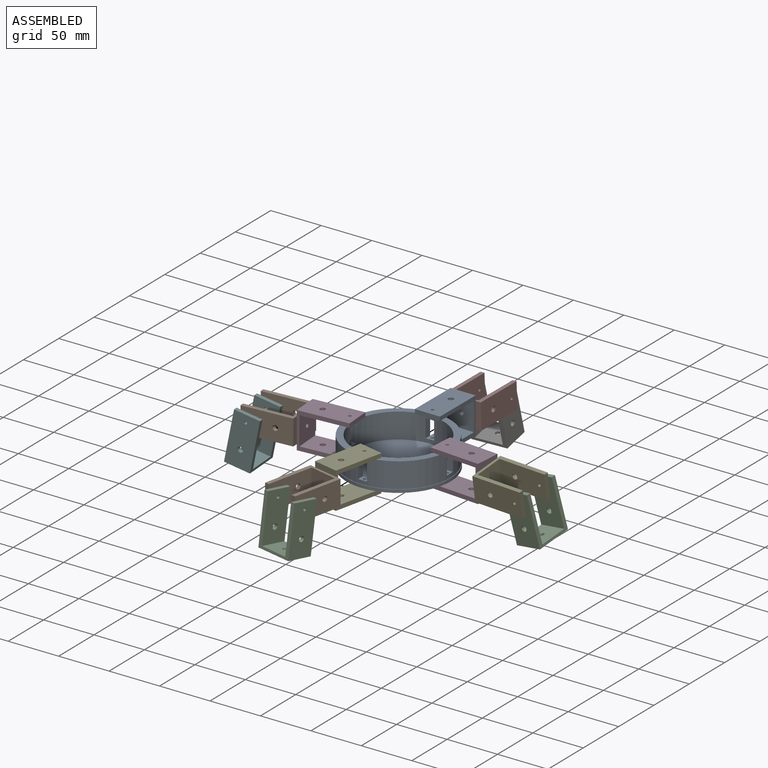
[diagram: assembled view]
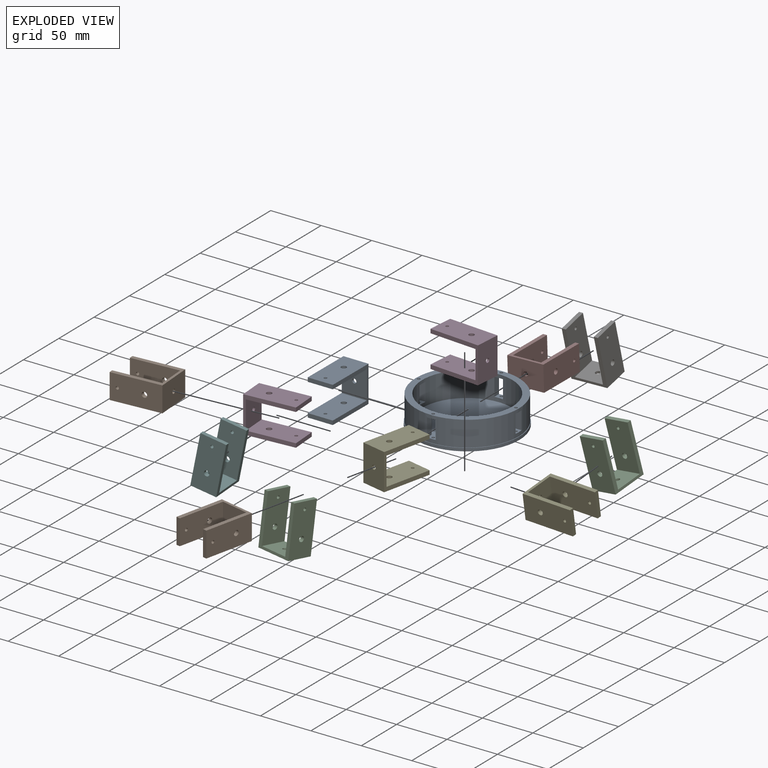
[diagram: exploded view]
GUIDED TOUR — MATED ASSEMBLY (Onshape document 5d435cd448d8f5c438c26eea, AutoMate assembly 5d435cd448d8f5c438c26eea_6f3d373aece2c92c3704abd1_5a1d6ec0963f0800d22ee970_default)

This assembly has 13 components, labeled P0..P12 below (a component is one placed occurrence of a part; the same part can appear more than once), held together by 12 mates. A mate is a constraint between two components; its type names the relative motion it leaves free:
  FASTENED — locks the two components together rigidly (no relative motion),
  REVOLUTE — leaves rotation about the listed axis free (a hinge).
Axis/direction vectors are unit vectors and 'through' points are millimeter coordinates, both in the assembly's world frame.

MATES
  1. REVOLUTE "Revolute 8": P7 <-> P0, axis (-0.009, -1.000, 0.000) through (15.47, 79.15, 20.17) mm
  2. REVOLUTE "Revolute 3": P9 <-> P12, axis (0.219, 0.976, 0.000) through (5.74, -101.82, 20.17) mm
  3. FASTENED "Fastened 3": P1 <-> P3, direction (0.998, 0.070, 0.000) through (-75.81, -14.86, 20.17) mm
  4. REVOLUTE "Revolute 1": P0 <-> P8, axis (0.000, 0.000, -1.000) through (15.09, 36.39, 34.17) mm
  5. REVOLUTE "Revolute 2": P12 <-> P8, axis (0.000, 0.000, -1.000) through (15.09, -60.10, 34.17) mm
  6. REVOLUTE "Revolute 10": P2 <-> P9, axis (-0.976, 0.219, 0.000) through (13.96, -147.49, 20.17) mm
  7. REVOLUTE "Revolute 7": P11 <-> P8, axis (0.000, 0.000, -1.000) through (63.34, -11.85, 34.17) mm
  8. REVOLUTE "Revolute 4": P5 <-> P1, axis (-0.070, 0.998, 0.000) through (-117.20, -35.82, 20.17) mm
  9. REVOLUTE "Revolute 5": P4 <-> P11, axis (-0.997, 0.081, 0.000) through (105.96, -15.31, 20.17) mm
  10. REVOLUTE "Revolute 9": P6 <-> P7, axis (0.999, -0.009, 0.033) through (-2.14, 122.07, 19.57) mm
  11. REVOLUTE "Revolute 11": P10 <-> P4, axis (-0.080, -0.986, -0.149) through (150.02, -1.03, 22.86) mm
  12. REVOLUTE "Revolute 6": P3 <-> P8, axis (0.000, 0.000, -1.000) through (-33.15, -11.85, 34.17) mm

ASSEMBLY ORDER
  1. P2 — the base component [order verified]
  2. P9 [order verified]
  3. P12 [order verified]
  4. P8 [order verified]
  5. P4 [order verified]
  6. P10 [order verified]
  7. P0 [order verified]
  8. P11 [order verified]
  9. P3 [order verified]
  10. P5 [order verified]
  11. P1 [order verified]
  12. P7 [order verified]
  13. P6 [order verified]
Order-tag legend:
  [order verified] — this step's position reverses a verified removal order: the component was checked to insert without passing through the ones already placed.

Of the 13 components, 13 carry the full construction recipe — the FeatureScript program that regenerates the part's solid from scratch; the rest are supplied as boundary geometry only.
Because this assembly has more than 12 components, the tour below covers the 12 most significant ones individually (every recipe-attached component first, then the largest by part volume), in assembly order; the remaining 1 are summarized together in a grouped section at the end.
Each toured component is shown spotlighted twice — in the assembled view, then in the exploded view, where a leader line traces a displaced component back to its assembled socket (saturated green if recipe-attached, orange if geometry-only; every other component desaturated gray) — followed by its recipe or geometry summary and the mates that hold it.
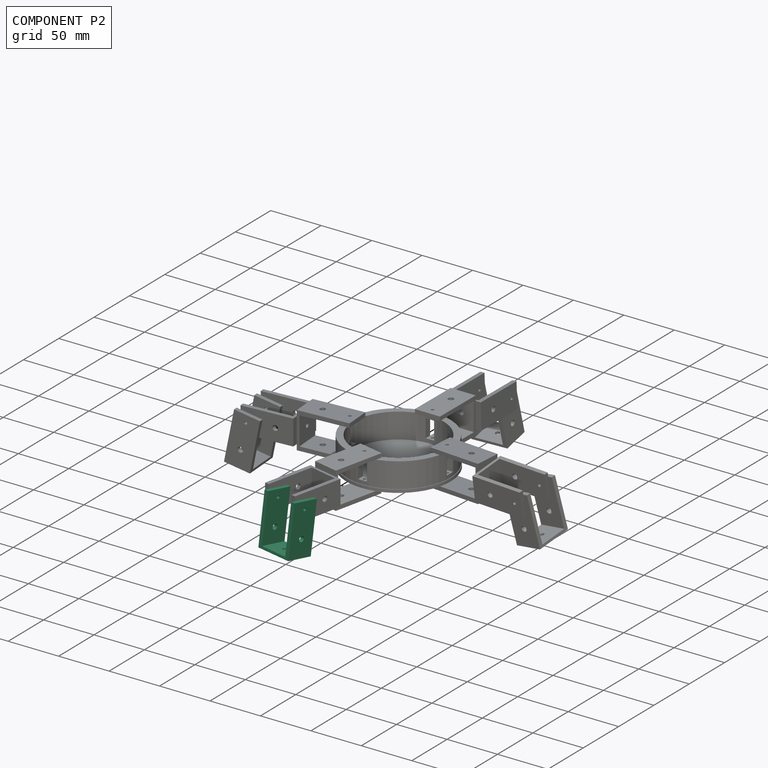
[diagram: component P2 — assembled]
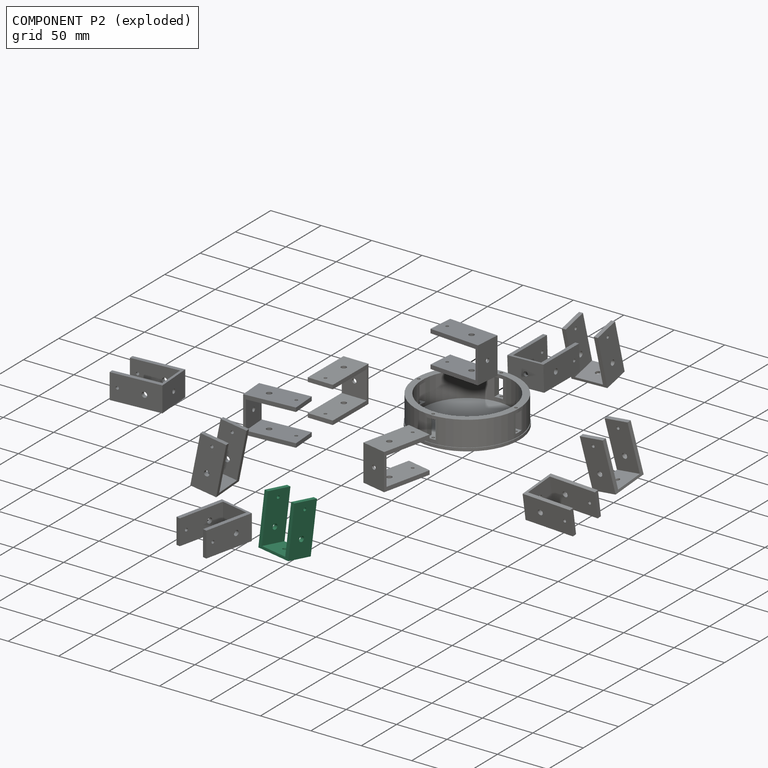
[diagram: component P2 — exploded]
COMPONENT P2 — same part as P0 (CADFS 00973655); its construction recipe is shown at P0.
Held by: REVOLUTE mate "Revolute 10" to P9.
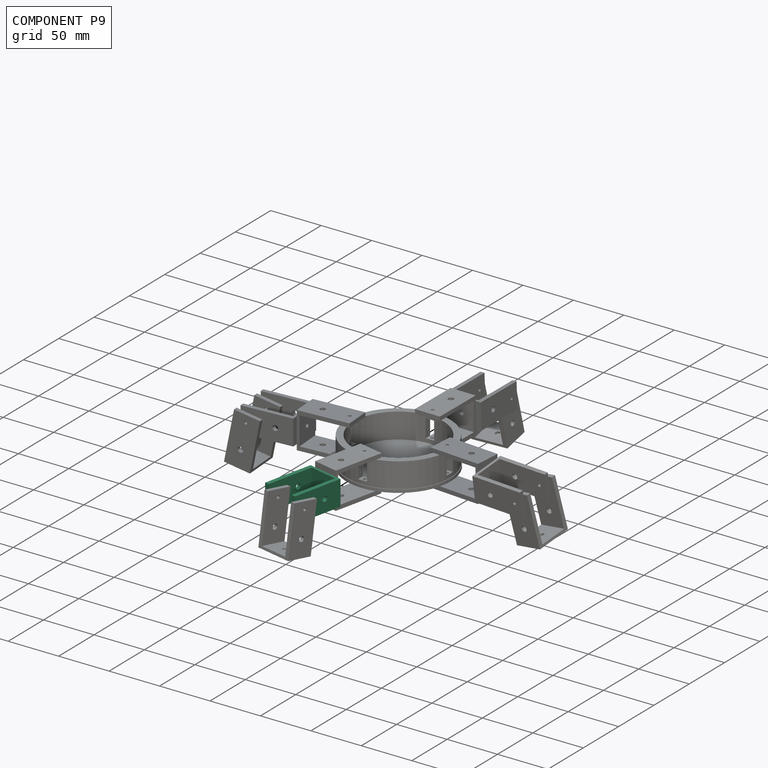
[diagram: component P9 — assembled]
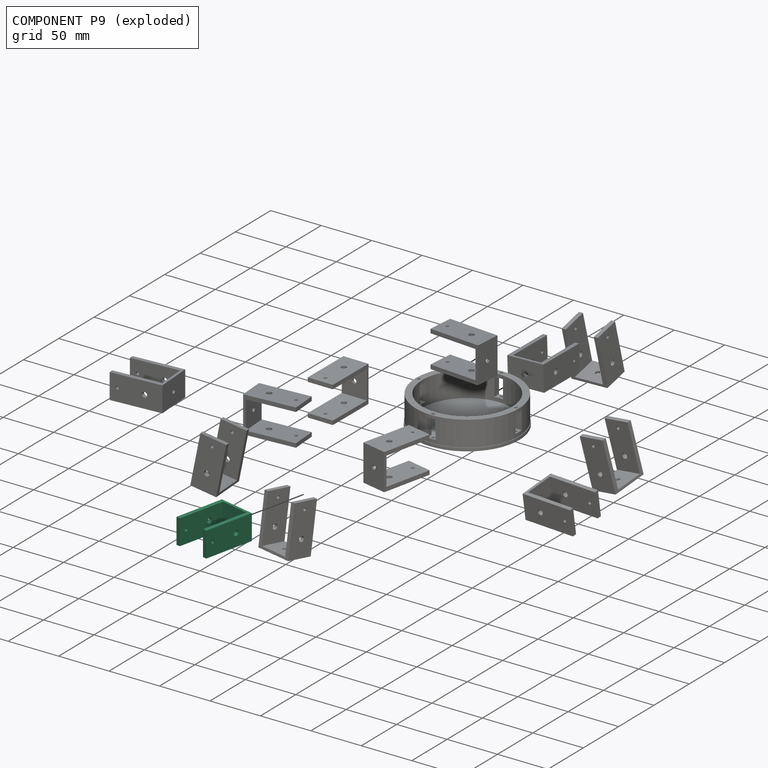
[diagram: component P9 — exploded]
COMPONENT P9 — same part as P0 (CADFS 00973655); its construction recipe is shown at P0.
Held by: REVOLUTE mate "Revolute 3" to P12; REVOLUTE mate "Revolute 10" to P2.
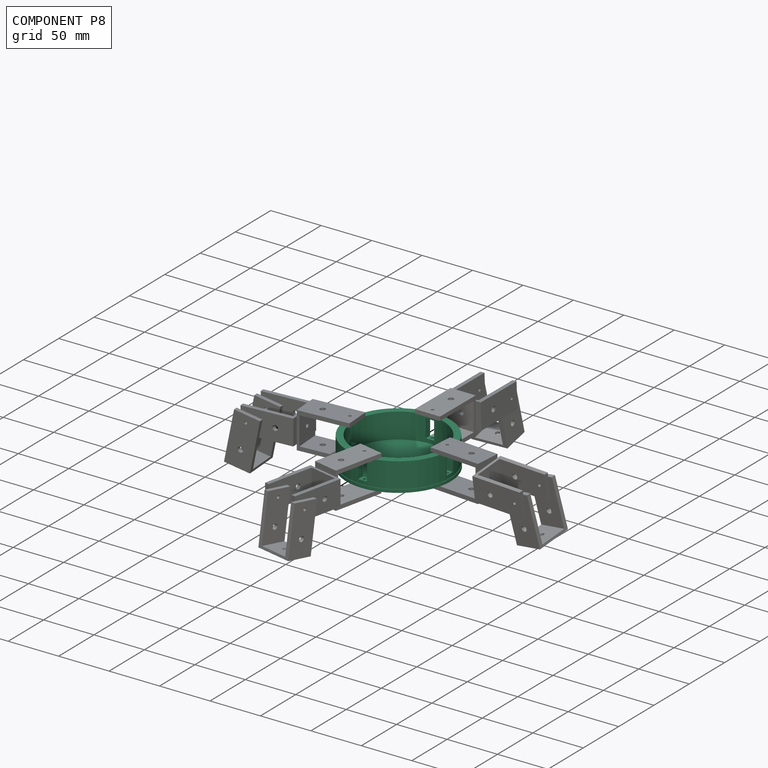
[diagram: component P8 — assembled]
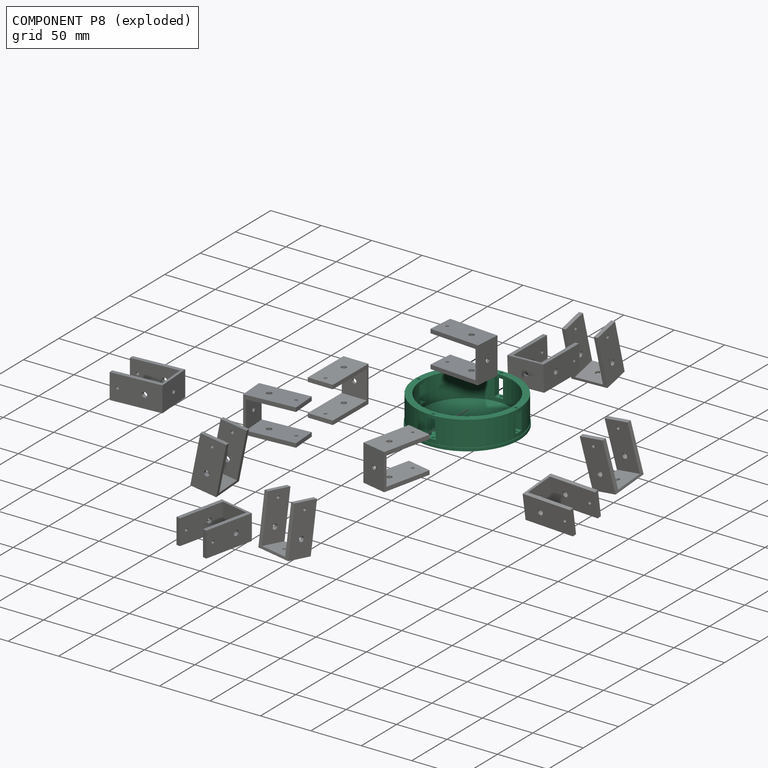
[diagram: component P8 — exploded]
COMPONENT P8 — recipe-attached (CADFS 00973654, mesh-verified: the recipe's output STEP matches this component's geometry to below the mesh-comparison resolution (tessellation chordal tolerance ~0.223 mm)).
Held by: REVOLUTE mate "Revolute 1" to P0; REVOLUTE mate "Revolute 2" to P12; REVOLUTE mate "Revolute 7" to P11; REVOLUTE mate "Revolute 6" to P3.
Construction recipe (FeatureScript — the CAD program that rebuilds this solid; sketch coordinates are in the units given by the * unit suffixes, e.g. mm):

FeatureScript 1540;
import(path : "onshape/std/geometry.fs", version : "1540.0");
import(path : "onshape/std/common.fs", version : "1540.0");
const mm = millimeter;
const VERTEX = EntityType.VERTEX;
const EDGE = EntityType.EDGE;
const FACE = EntityType.FACE;
const BODY = EntityType.BODY;
function v(x, y){return vector(x, y);}
function OD(order){return orderDisambiguation(order);}
function OSD(set){return originalSetDisambiguation(set);}
function TD(topology){return topologyDisambiguation(topology);}
function TDD(query){return trueDependencyDisambiguation(query);}
function sQuery(a, b, c) {return sketchEntityQuery(a, b, c);}

annotation { "Feature Type Name" : "Feature", "Feature Type Description" : "" }
export const myFeature = defineFeature(function(context is Context, id is Id, definition is map)
    precondition{}
    {
        {
            var Q0;
            Q0=qCreatedBy(makeId("Top.planeOp"),FACE);
            var sketch = newSketch(context, id + "F0", { "sketchPlane" : qUnion([Q0])});
            skCircle(sketch, "E0", {"center": v(0, 0) * mm, "radius": 51.06 * mm});
            skCircle(sketch, "E1", {"center": v(0, 0) * mm, "radius": 44.65 * mm});
            skSolve(sketch);
        }
        {
            var Q0;
            Q0=makeQuery(id+"F0.imprint","IMPRINT",FACE,{"disambiguationData":[TD([[makeQuery(id+"F0.imprint","IMPRINT",EDGE,{"derivedFrom":sQuery(id+"F0.wireOp",EDGE,"E0")}),1.0]])]});
            extrude(context, id + "F1", {"entities" : qUnion([Q0]), "depth" : 25 * mm, "offsetDistance" : 25 * mm});
        }
        {
            var Q0;
            Q0=makeQuery(id+"F1.opExtrude","CAP_FACE",FACE,{"disambiguationData":[OSD([sQuery(id+"F0.wireOp",EDGE,"E0"),sQuery(id+"F0.wireOp",EDGE,"E1")])],"isStart":true});
            var sketch = newSketch(context, id + "F2", { "sketchPlane" : qUnion([Q0])});
            skCircle(sketch, "E2", {"center": v(0, 0) * mm, "radius": 51.66 * mm});
            skSolve(sketch);
        }
        {
            var Q0;
            Q0 = qSketchRegion(id + "F2", true);
            extrude(context, id + "F3", {"entities" : qUnion([Q0]), "operationType" : NewBodyOperationType.ADD, "depth" : 3 * mm, "offsetDistance" : 25 * mm});
        }
        {
            var Q0;
            Q0=qCreatedBy(makeId("Front.planeOp"),FACE);
            var sketch = newSketch(context, id + "F4", { "sketchPlane" : qUnion([Q0])});
            skLineSegment(sketch, "E3.bottom", {"start": v(-4.24, 21.68) * mm, "end": v(4.24, 21.68) * mm});
            skLineSegment(sketch, "E3.top", {"start": v(-4.24, 3.76) * mm, "end": v(4.24, 3.76) * mm});
            skLineSegment(sketch, "E3.left", {"start": v(-4.24, 21.68) * mm, "end": v(-4.24, 3.76) * mm});
            skLineSegment(sketch, "E3.right", {"start": v(4.24, 21.68) * mm, "end": v(4.24, 3.76) * mm});
            skPoint(sketch, "E3.middle", {"position": v(0, 12.72) * mm});
            skSolve(sketch);
        }
        {
            var Q0;
            Q0=makeQuery(id+"F4.imprint","IMPRINT",FACE,{"disambiguationData":[TD([[makeQuery(id+"F4.imprint","IMPRINT",EDGE,{"derivedFrom":sQuery(id+"F4.wireOp",EDGE,"E3.bottom")}),-1.0]])]});
            extrude(context, id + "F5", {"entities" : qUnion([Q0]), "operationType" : NewBodyOperationType.REMOVE, "oppositeDirection" : true, "depth" : 174.4 * mm, "offsetDistance" : 25 * mm, "symmetric" : true});
        }
        {
            var Q0;
            Q0=qCreatedBy(makeId("Right.planeOp"),FACE);
            var sketch = newSketch(context, id + "F6", { "sketchPlane" : qUnion([Q0])});
            skLineSegment(sketch, "E4.bottom", {"start": v(-4.24, 21.77) * mm, "end": v(4.24, 21.77) * mm});
            skLineSegment(sketch, "E4.top", {"start": v(-4.24, 3.85) * mm, "end": v(4.24, 3.85) * mm});
            skLineSegment(sketch, "E4.left", {"start": v(-4.24, 21.77) * mm, "end": v(-4.24, 3.85) * mm});
            skLineSegment(sketch, "E4.right", {"start": v(4.24, 21.77) * mm, "end": v(4.24, 3.85) * mm});
            skPoint(sketch, "E4.middle", {"position": v(0, 12.8) * mm});
            skSolve(sketch);
        }
        {
            var Q0;
            Q0=makeQuery(id+"F6.imprint","IMPRINT",FACE,{"disambiguationData":[TD([[makeQuery(id+"F6.imprint","IMPRINT",EDGE,{"derivedFrom":sQuery(id+"F6.wireOp",EDGE,"E4.bottom")}),-1.0]])]});
            extrude(context, id + "F7", {"entities" : qUnion([Q0]), "operationType" : NewBodyOperationType.REMOVE, "oppositeDirection" : true, "depth" : 123.8 * mm, "offsetDistance" : 25 * mm, "symmetric" : true});
        }
        {
            var Q0;
            Q0=makeQuery(id+"F1.opExtrude","CAP_FACE",FACE,{"disambiguationData":[OSD([sQuery(id+"F0.wireOp",EDGE,"E0"),sQuery(id+"F0.wireOp",EDGE,"E1")])],"isStart":false});
            var sketch = newSketch(context, id + "F8", { "sketchPlane" : qUnion([Q0])});
            skCircle(sketch, "E5", {"center": v(0, 48.25) * mm, "radius": 1.5 * mm});
            skCircle(sketch, "E6.1.0", {"center": v(-48.25, 0) * mm, "radius": 1.5 * mm});
            skCircle(sketch, "E6.2.0", {"center": v(0, -48.25) * mm, "radius": 1.5 * mm});
            skPoint(sketch, "E6.center", {"position": v(0, 0) * mm});
            skCircle(sketch, "E7.1.3.0", {"center": v(48.25, 0) * mm, "radius": 1.5 * mm});
            skSolve(sketch);
        }
        {
            var Q0;
            Q0=makeQuery(id+"F8.imprint","IMPRINT",FACE,{"disambiguationData":[TD([[makeQuery(id+"F8.imprint","IMPRINT",EDGE,{"derivedFrom":sQuery(id+"F8.wireOp",EDGE,"E5")}),1.0]])]});
            var Q1;
            Q1=makeQuery(id+"F8.imprint","IMPRINT",FACE,{"disambiguationData":[TD([[makeQuery(id+"F8.imprint","IMPRINT",EDGE,{"derivedFrom":sQuery(id+"F8.wireOp",EDGE,"E6.2.0")}),1.0]])]});
            var Q2;
            Q2=makeQuery(id+"F8.imprint","IMPRINT",FACE,{"disambiguationData":[TD([[makeQuery(id+"F8.imprint","IMPRINT",EDGE,{"derivedFrom":sQuery(id+"F8.wireOp",EDGE,"E6.1.0")}),1.0]])]});
            var Q3;
            Q3=makeQuery(id+"F8.imprint","IMPRINT",FACE,{"disambiguationData":[TD([[makeQuery(id+"F8.imprint","IMPRINT",EDGE,{"derivedFrom":sQuery(id+"F8.wireOp",EDGE,"E7.1.3.0")}),1.0]])]});
            extrude(context, id + "F9", {"entities" : qUnion([Q0, Q1, Q2, Q3]), "operationType" : NewBodyOperationType.REMOVE, "endBound" : BoundingType.THROUGH_ALL, "oppositeDirection" : true, "depth" : 25 * mm, "offsetDistance" : 25 * mm});
        }
    });
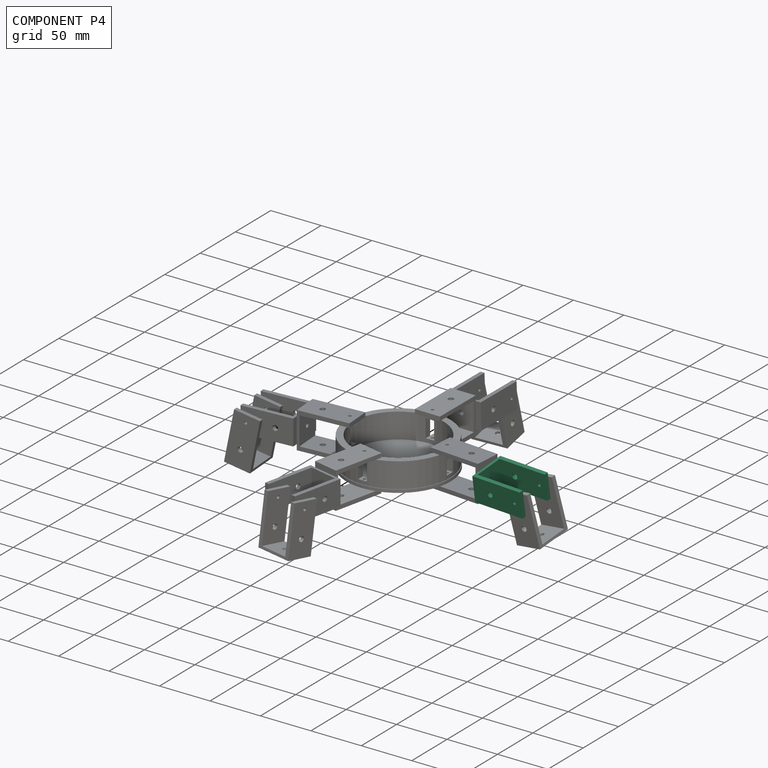
[diagram: component P4 — assembled]
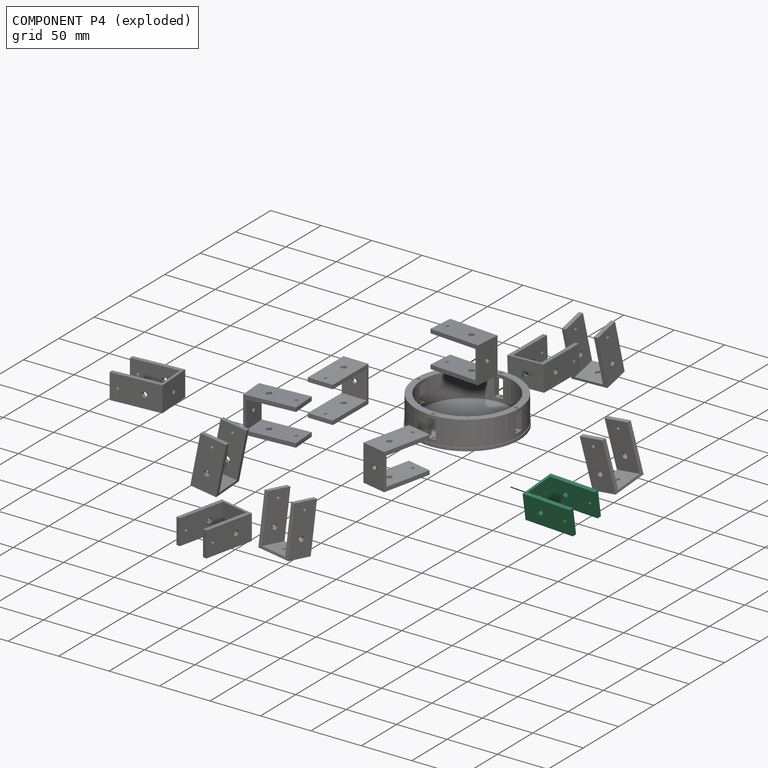
[diagram: component P4 — exploded]
COMPONENT P4 — same part as P0 (CADFS 00973655); its construction recipe is shown at P0.
Held by: REVOLUTE mate "Revolute 5" to P11; REVOLUTE mate "Revolute 11" to P10.
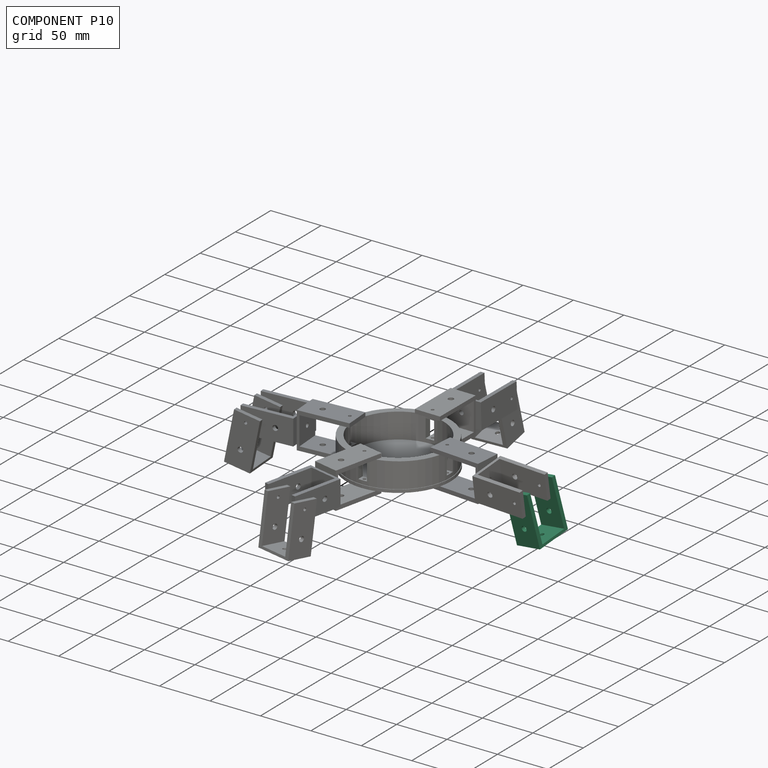
[diagram: component P10 — assembled]
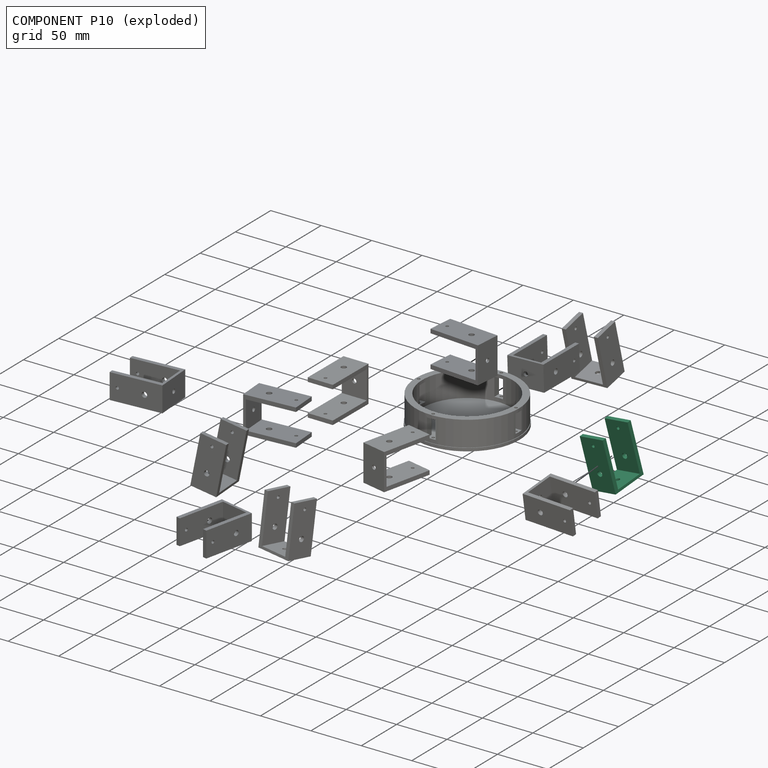
[diagram: component P10 — exploded]
COMPONENT P10 — same part as P0 (CADFS 00973655); its construction recipe is shown at P0.
Held by: REVOLUTE mate "Revolute 11" to P4.
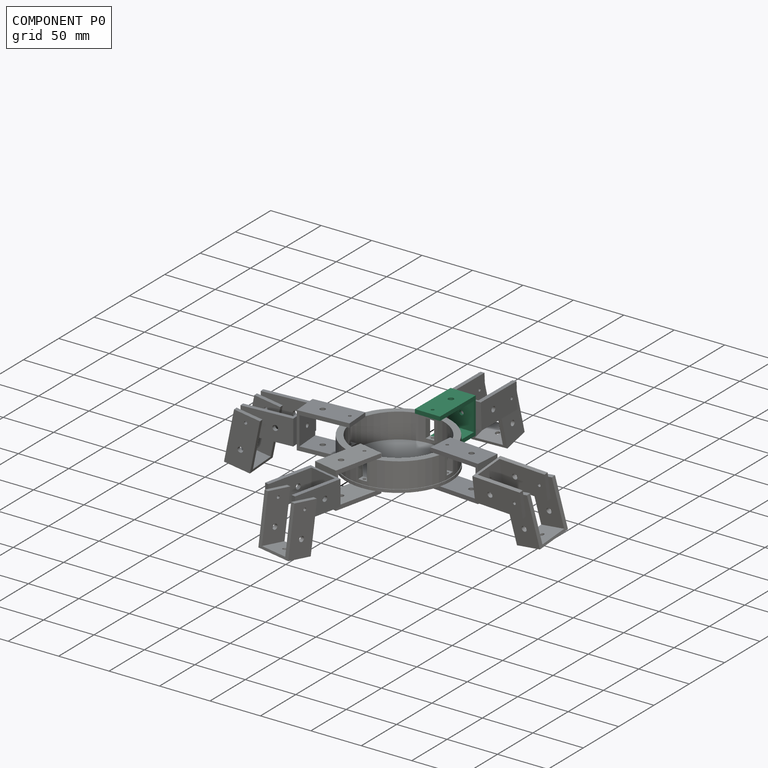
[diagram: component P0 — assembled]
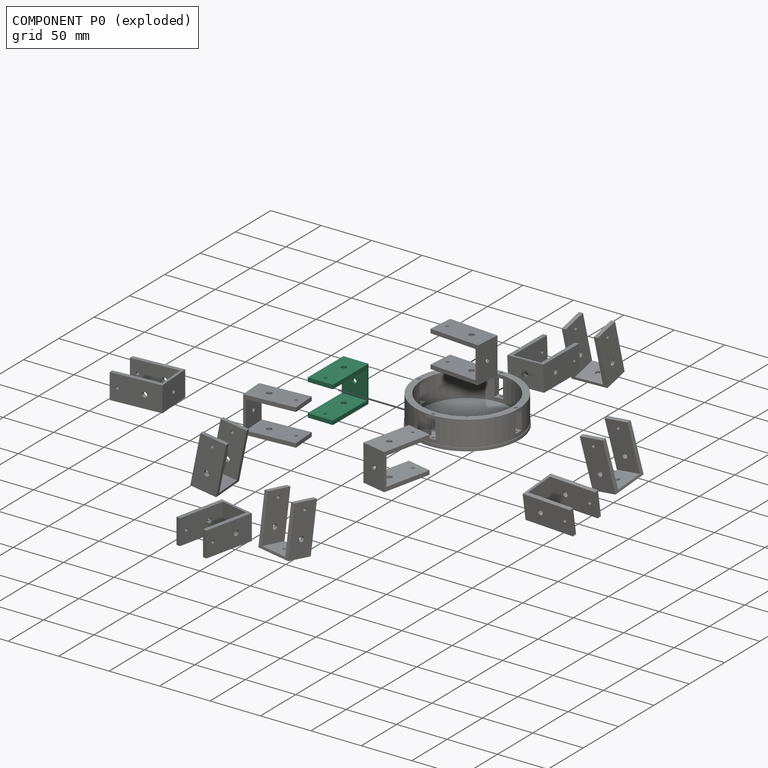
[diagram: component P0 — exploded]
COMPONENT P0 — recipe-attached (CADFS 00973655, mesh-verified: the recipe's output STEP matches this component's geometry to below the mesh-comparison resolution (tessellation chordal tolerance ~0.0997 mm)).
Held by: REVOLUTE mate "Revolute 8" to P7; REVOLUTE mate "Revolute 1" to P8.
Construction recipe (FeatureScript — the CAD program that rebuilds this solid; sketch coordinates are in the units given by the * unit suffixes, e.g. mm):

FeatureScript 1540;
import(path : "onshape/std/geometry.fs", version : "1540.0");
import(path : "onshape/std/common.fs", version : "1540.0");
const mm = millimeter;
const VERTEX = EntityType.VERTEX;
const EDGE = EntityType.EDGE;
const FACE = EntityType.FACE;
const BODY = EntityType.BODY;
function v(x, y){return vector(x, y);}
function OD(order){return orderDisambiguation(order);}
function OSD(set){return originalSetDisambiguation(set);}
function TD(topology){return topologyDisambiguation(topology);}
function TDD(query){return trueDependencyDisambiguation(query);}
function sQuery(a, b, c) {return sketchEntityQuery(a, b, c);}

annotation { "Feature Type Name" : "Feature", "Feature Type Description" : "" }
export const myFeature = defineFeature(function(context is Context, id is Id, definition is map)
    precondition{}
    {
        {
            var Q0;
            Q0=qCreatedBy(makeId("Front.planeOp"),FACE);
            var sketch = newSketch(context, id + "F0", { "sketchPlane" : qUnion([Q0])});
            skLineSegment(sketch, "E0.bottom", {"start": v(-25, 18) * mm, "end": v(25, 18) * mm});
            skLineSegment(sketch, "E0.top", {"start": v(-25, -18) * mm, "end": v(25, -18) * mm});
            skLineSegment(sketch, "E0.left", {"start": v(-25, 18) * mm, "end": v(-25, -18) * mm});
            skLineSegment(sketch, "E0.right", {"start": v(25, 18) * mm, "end": v(25, 14) * mm});
            skPoint(sketch, "E0.middle", {"position": v(0, 0) * mm});
            skLineSegment(sketch, "E1.bottom", {"start": v(-22.5, 14) * mm, "end": v(22.5, 14) * mm});
            skLineSegment(sketch, "E1.top", {"start": v(-22.5, -14) * mm, "end": v(22.5, -14) * mm});
            skLineSegment(sketch, "E1.left", {"start": v(-22.5, 14) * mm, "end": v(-22.5, -14) * mm});
            skLineSegment(sketch, "E2", {"start": v(22.5, 14) * mm, "end": v(25, 14) * mm});
            skLineSegment(sketch, "E3", {"start": v(25, -14) * mm, "end": v(22.5, -14) * mm});
            skLineSegment(sketch, "E4.trimOffspring", {"start": v(25, -14) * mm, "end": v(25, -18) * mm});
            skPoint(sketch, "E5.orphan", {"position": v(56.95, -14) * mm});
            skSolve(sketch);
        }
        {
            var Q0;
            Q0=makeQuery(id+"F0.imprint","IMPRINT",FACE,{"disambiguationData":[TD([[makeQuery(id+"F0.imprint","IMPRINT",EDGE,{"derivedFrom":sQuery(id+"F0.wireOp",EDGE,"E0.bottom")}),-1.0]])]});
            extrude(context, id + "F1", {"entities" : qUnion([Q0]), "depth" : 25 * mm, "offsetDistance" : 25 * mm});
        }
        {
            var Q0;
            Q0=makeQuery(id+"F1.opExtrude","SWEPT_FACE",FACE,{"disambiguationData":[OSD([sQuery(id+"F0.wireOp",EDGE,"E0.bottom")])]});
            var sketch = newSketch(context, id + "F2", { "sketchPlane" : qUnion([Q0])});
            skCircle(sketch, "E6", {"center": v(17.76, -12.5) * mm, "radius": 1.5 * mm});
            skPoint(sketch, "E6.centerSnap0", {"position": v(25, -12.5) * mm});
            skSolve(sketch);
        }
        {
            var Q0;
            Q0=makeQuery(id+"F2.imprint","IMPRINT",FACE,{"disambiguationData":[TD([[makeQuery(id+"F2.imprint","IMPRINT",EDGE,{"derivedFrom":sQuery(id+"F2.wireOp",EDGE,"E6")}),1.0]])]});
            extrude(context, id + "F3", {"entities" : qUnion([Q0]), "operationType" : NewBodyOperationType.REMOVE, "endBound" : BoundingType.THROUGH_ALL, "oppositeDirection" : true, "depth" : 25 * mm, "offsetDistance" : 25 * mm});
        }
        {
            var Q0;
            Q0=makeQuery(id+"F1.opExtrude","SWEPT_FACE",FACE,{"disambiguationData":[OSD([sQuery(id+"F0.wireOp",EDGE,"E0.left")])]});
            var sketch = newSketch(context, id + "F4", { "sketchPlane" : qUnion([Q0])});
            skCircle(sketch, "E7", {"center": v(12.5, 0) * mm, "radius": 2.15 * mm});
            skPoint(sketch, "E7.centerSnap0", {"position": v(12.5, 18) * mm});
            skPoint(sketch, "E7.centerSnap1", {"position": v(25, 0) * mm});
            skSolve(sketch);
        }
        {
            var Q0;
            Q0=makeQuery(id+"F4.imprint","IMPRINT",FACE,{"disambiguationData":[TD([[makeQuery(id+"F4.imprint","IMPRINT",EDGE,{"derivedFrom":sQuery(id+"F4.wireOp",EDGE,"E7")}),1.0]])]});
            extrude(context, id + "F5", {"entities" : qUnion([Q0]), "operationType" : NewBodyOperationType.REMOVE, "endBound" : BoundingType.THROUGH_ALL, "oppositeDirection" : true, "depth" : 25 * mm, "offsetDistance" : 25 * mm});
        }
        {
            var Q0;
            Q0=makeQuery(id+"F1.opExtrude","SWEPT_FACE",FACE,{"disambiguationData":[OSD([sQuery(id+"F0.wireOp",EDGE,"E0.bottom")])]});
            var sketch = newSketch(context, id + "F6", { "sketchPlane" : qUnion([Q0])});
            skCircle(sketch, "E8", {"center": v(-7.93, -12.5) * mm, "radius": 2.62 * mm});
            skPoint(sketch, "E8.centerSnap0", {"position": v(-25, -12.5) * mm});
            skSolve(sketch);
        }
        {
            var Q0;
            Q0=makeQuery(id+"F6.imprint","IMPRINT",FACE,{"disambiguationData":[TD([[makeQuery(id+"F6.imprint","IMPRINT",EDGE,{"derivedFrom":sQuery(id+"F6.wireOp",EDGE,"E8")}),1.0]])]});
            extrude(context, id + "F7", {"entities" : qUnion([Q0]), "operationType" : NewBodyOperationType.REMOVE, "endBound" : BoundingType.THROUGH_ALL, "oppositeDirection" : true, "depth" : 25 * mm, "offsetDistance" : 25 * mm});
        }
    });
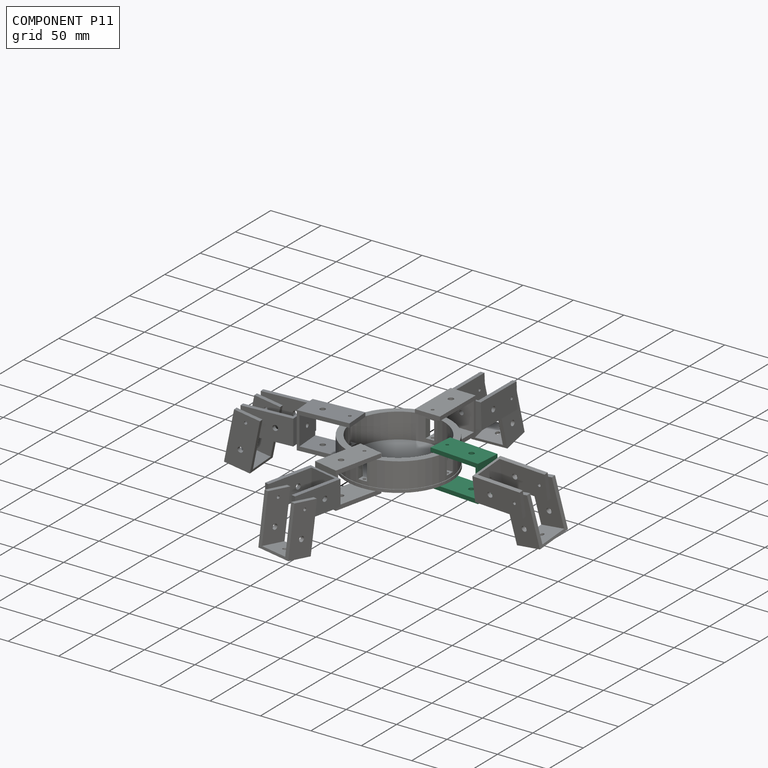
[diagram: component P11 — assembled]
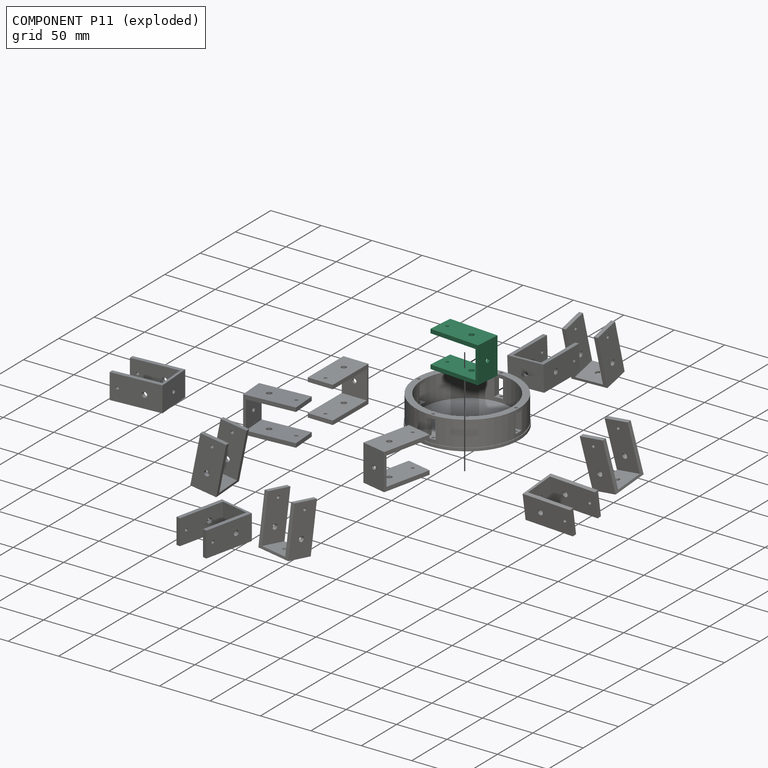
[diagram: component P11 — exploded]
COMPONENT P11 — same part as P0 (CADFS 00973655); its construction recipe is shown at P0.
Held by: REVOLUTE mate "Revolute 7" to P8; REVOLUTE mate "Revolute 5" to P4.
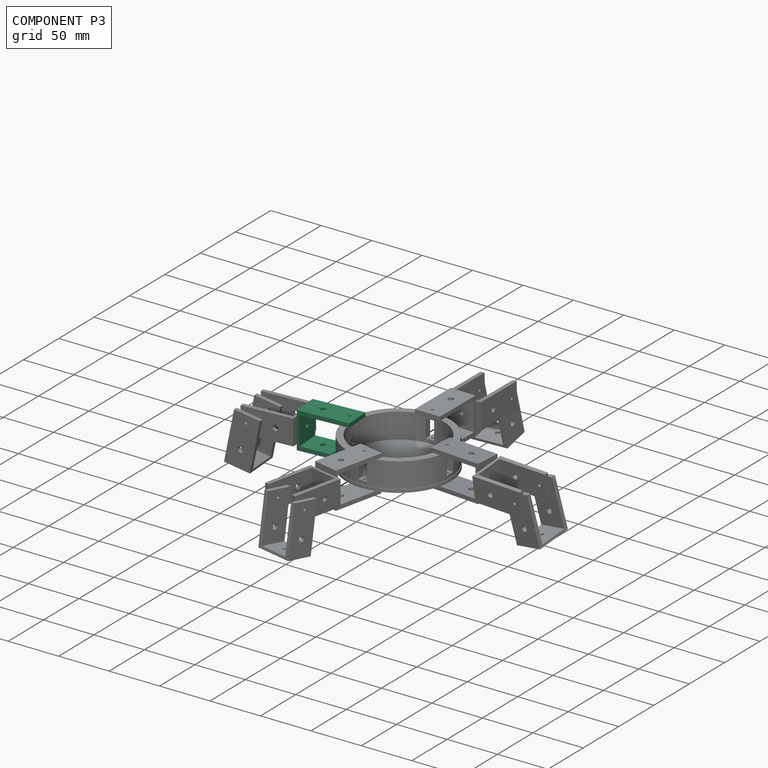
[diagram: component P3 — assembled]
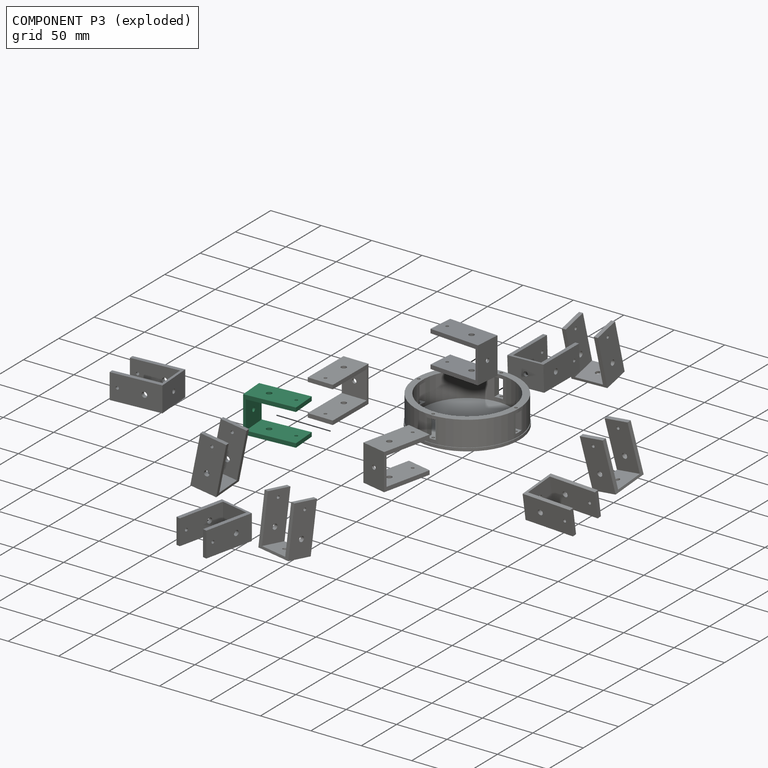
[diagram: component P3 — exploded]
COMPONENT P3 — same part as P0 (CADFS 00973655); its construction recipe is shown at P0.
Held by: FASTENED mate "Fastened 3" to P1; REVOLUTE mate "Revolute 6" to P8.
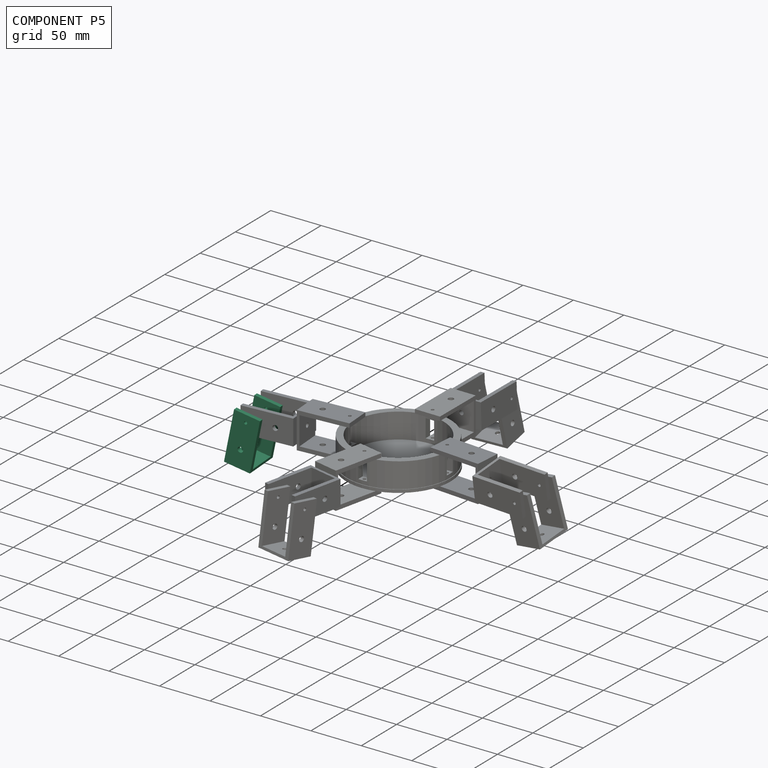
[diagram: component P5 — assembled]
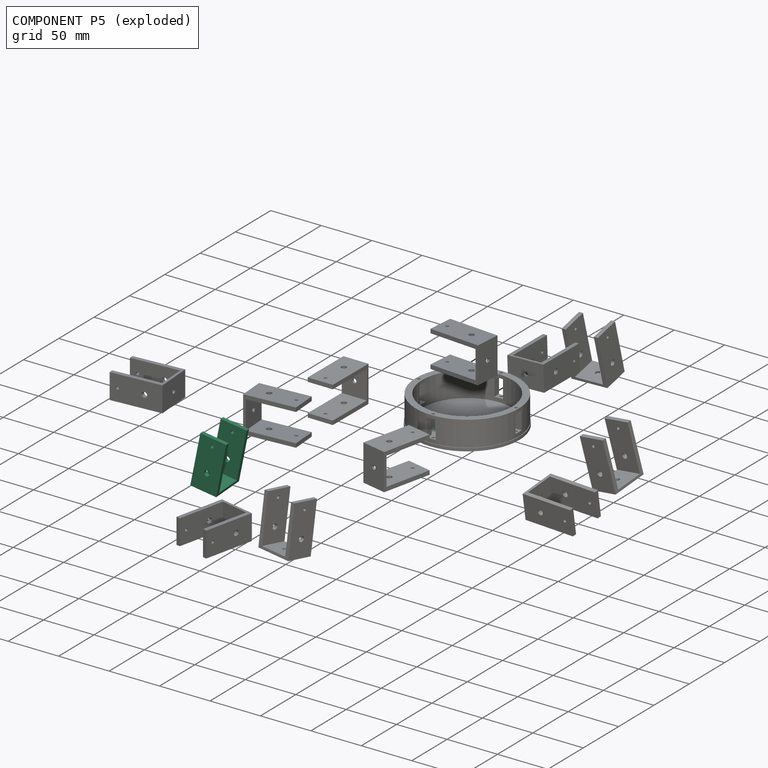
[diagram: component P5 — exploded]
COMPONENT P5 — same part as P0 (CADFS 00973655); its construction recipe is shown at P0.
Held by: REVOLUTE mate "Revolute 4" to P1.
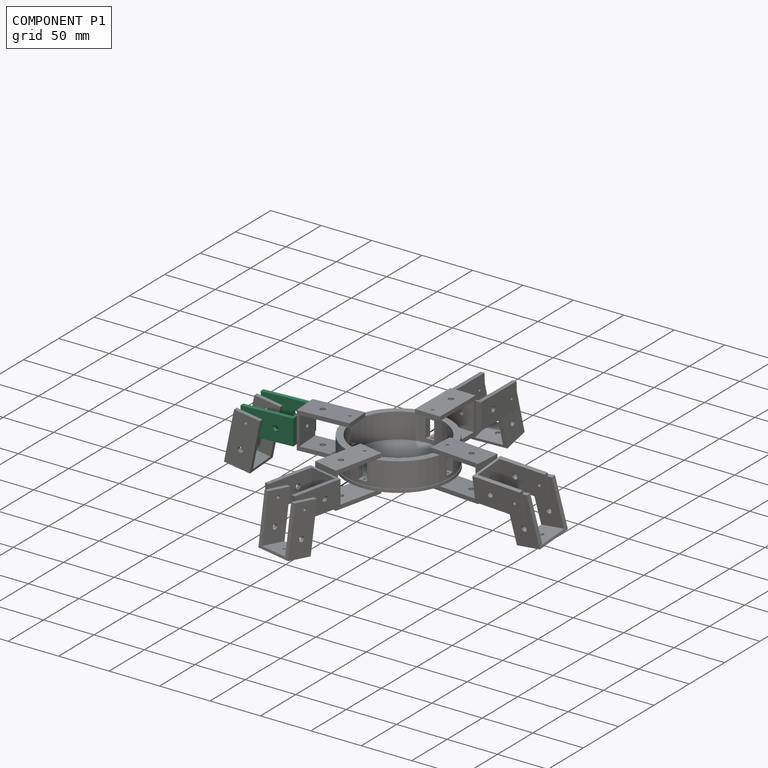
[diagram: component P1 — assembled]
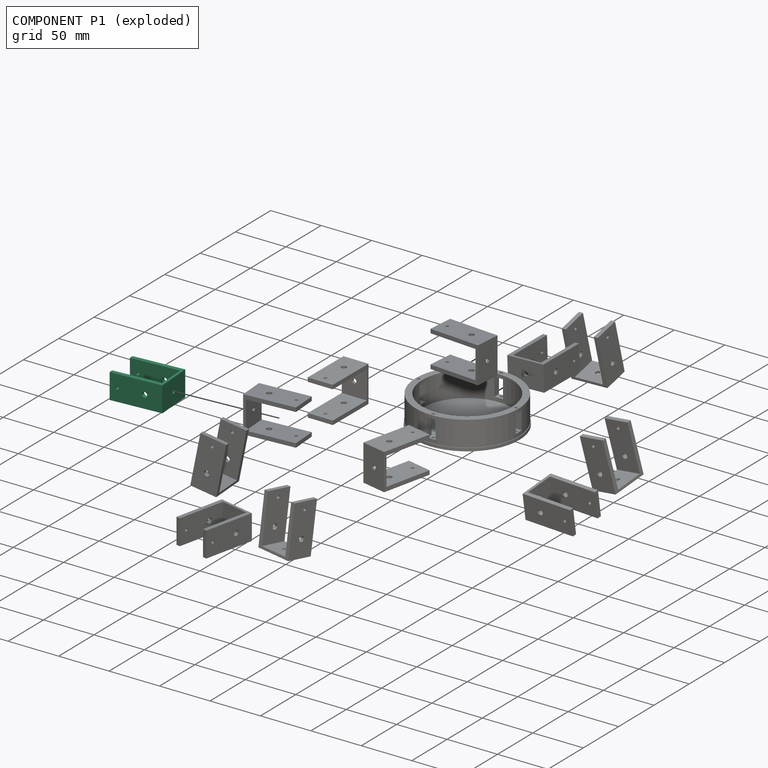
[diagram: component P1 — exploded]
COMPONENT P1 — same part as P0 (CADFS 00973655); its construction recipe is shown at P0.
Held by: FASTENED mate "Fastened 3" to P3; REVOLUTE mate "Revolute 4" to P5.
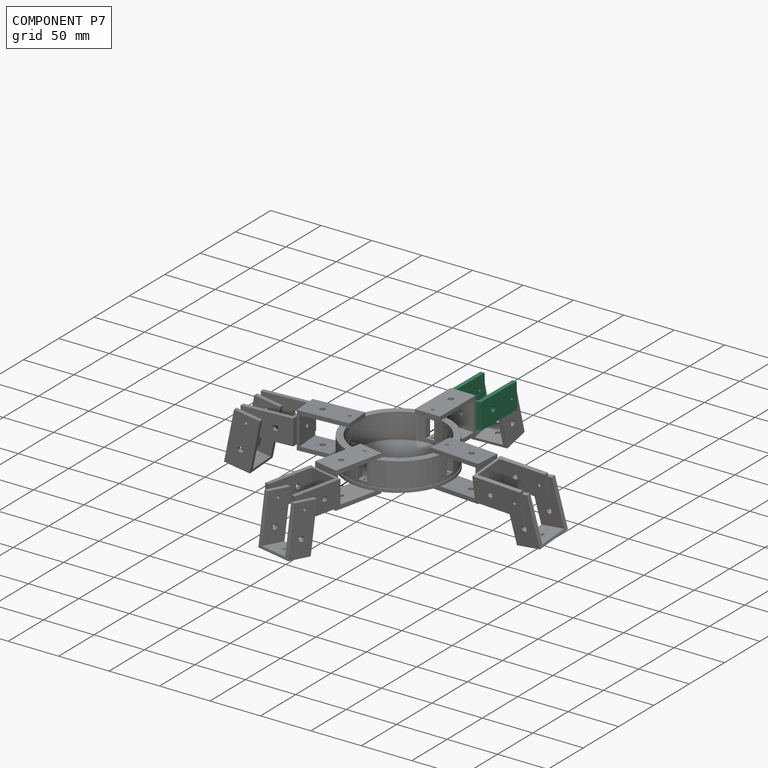
[diagram: component P7 — assembled]
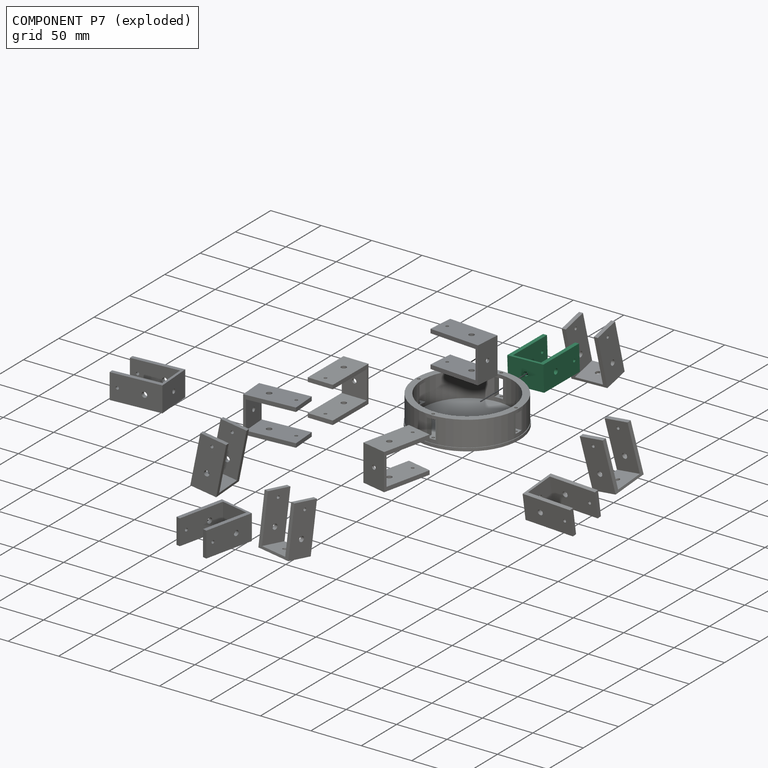
[diagram: component P7 — exploded]
COMPONENT P7 — same part as P0 (CADFS 00973655); its construction recipe is shown at P0.
Held by: REVOLUTE mate "Revolute 8" to P0; REVOLUTE mate "Revolute 9" to P6.
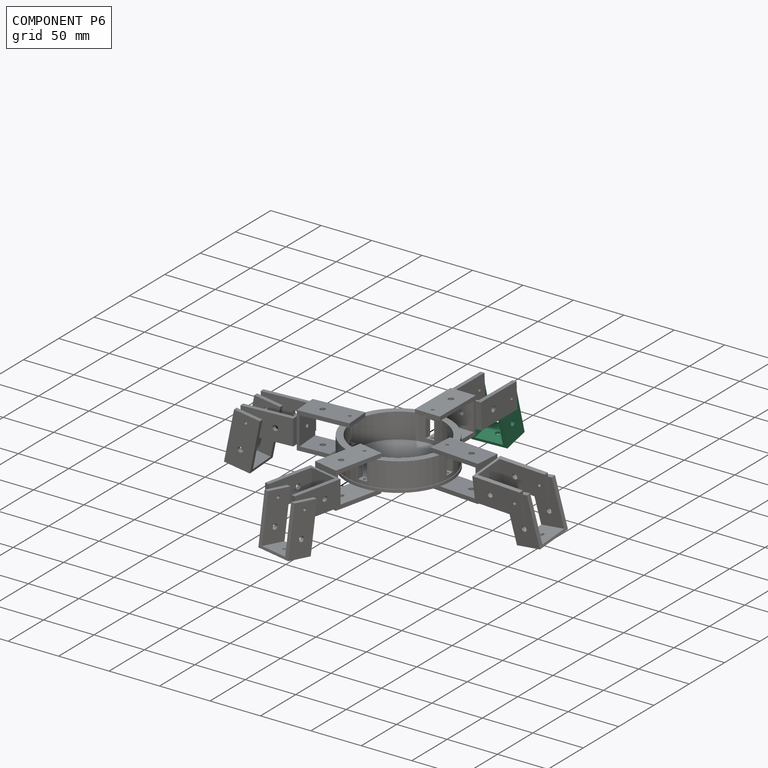
[diagram: component P6 — assembled]
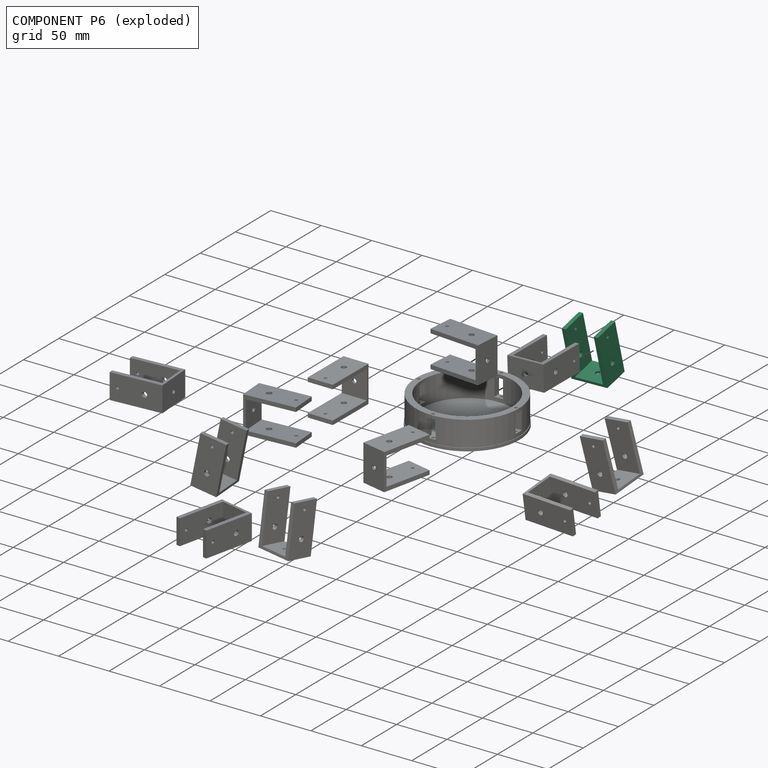
[diagram: component P6 — exploded]
COMPONENT P6 — same part as P0 (CADFS 00973655); its construction recipe is shown at P0.
Held by: REVOLUTE mate "Revolute 9" to P7.
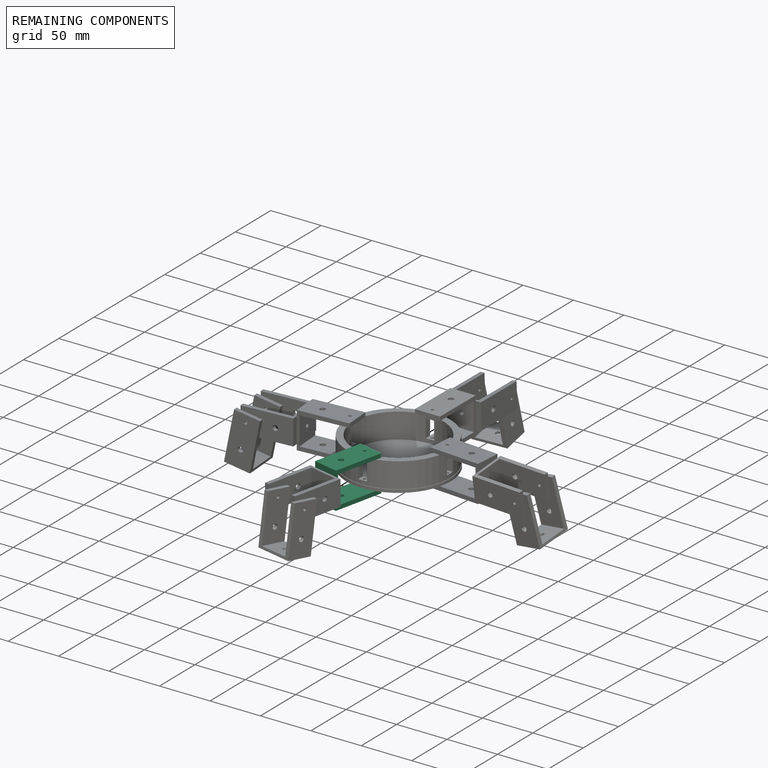
[diagram: remaining components — assembled]
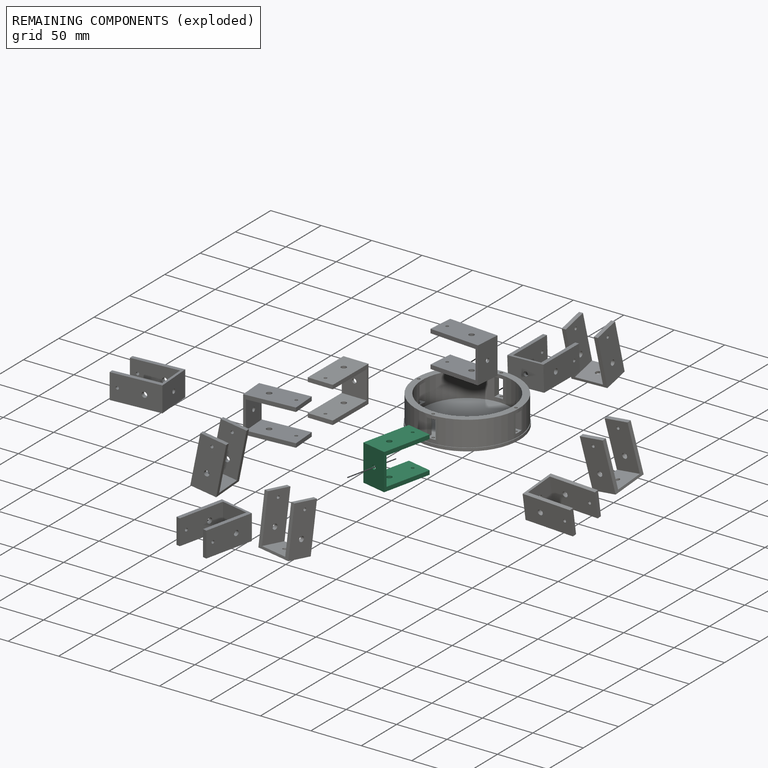
[diagram: remaining components — exploded]
REMAINING COMPONENTS (grouped) — the 1 components below fall outside the per-component tour by the significance rule stated above; both spotlight views highlight the whole group.
  P12: bounding box 50.0 x 36.0 x 25.0 mm, volume 11484 mm^3. Recipe-attached (CADFS 00973655; recipe not printed under the significance rule). Held by: REVOLUTE mate "Revolute 3" to P9; REVOLUTE mate "Revolute 2" to P8.
PROVENANCE & LICENSES
Assembly (occurrences, transforms, mates, per-part STEP geometry): AutoMate dataset, Zenodo record 7776208, CC0.
Construction recipes: CADFS (HuggingFace VladPyatov/CADFS, CC-BY-4.0, layered over the ABC dataset), FeatureScript reconstruction programs keyed by ABC model id.
Join: ABC meta listings map ABC model id -> Onshape documentId; within a shared document, parts are matched by geometric signature (bounding-box dims + volume at 0.1% relative tolerance, exact B-rep face/solid counts).
Verification: 13 of this assembly's 13 components carry a recipe attachment, and every attachment is mesh-verified: the CADFS STEP and the AutoMate member STEP were compared as meshes in their shared local frame (symmetric sampled-point-to-mesh distance); worst across the 13 attachments: below the mesh-comparison resolution (tessellation chordal tolerance ~0.223 mm) on a 149 mm part.
Renders: orthographic iso camera (az 35 / el 25); the floor grid conveys scale (grid pitch printed in each image; no ruler). In the exploded view each component is displaced by its stored offset vector: the offsets alone carry the explosion direction (mate normal/axis signs are not orientation cues and do not encode it), and separation distances are assigned per mate-chain, not proportionally to assembly-order depth.
